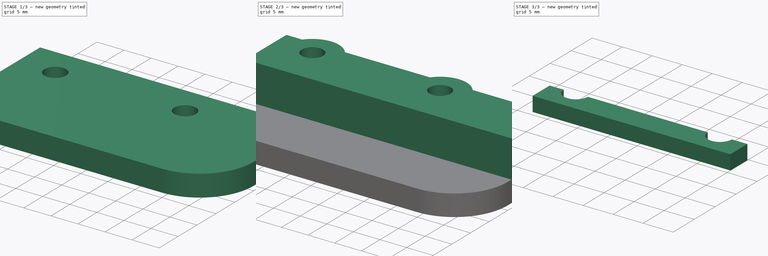
[diagram: build sequence overview — one tinted view per stage of 3, left to right]
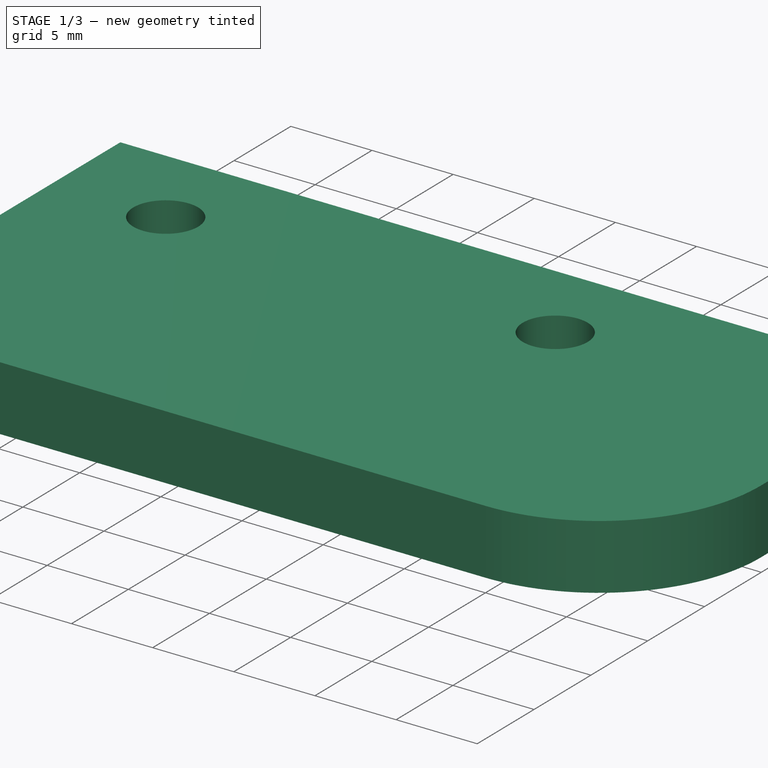
[diagram: stage 1 of 3 — iso view after this stage's code; geometry added in this stage tinted green]
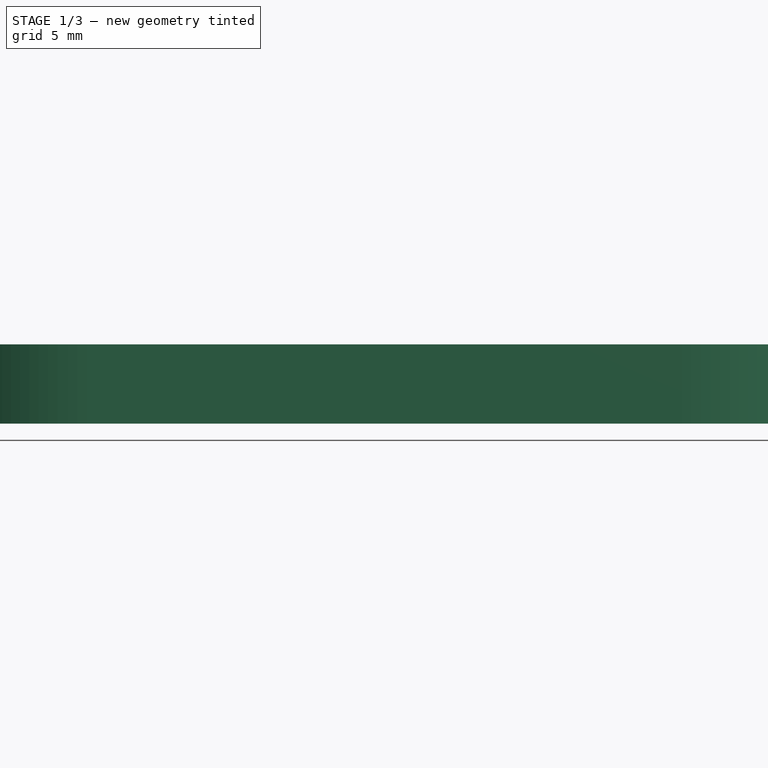
[diagram: stage 1 of 3 — front view after this stage's code; geometry added in this stage tinted green]
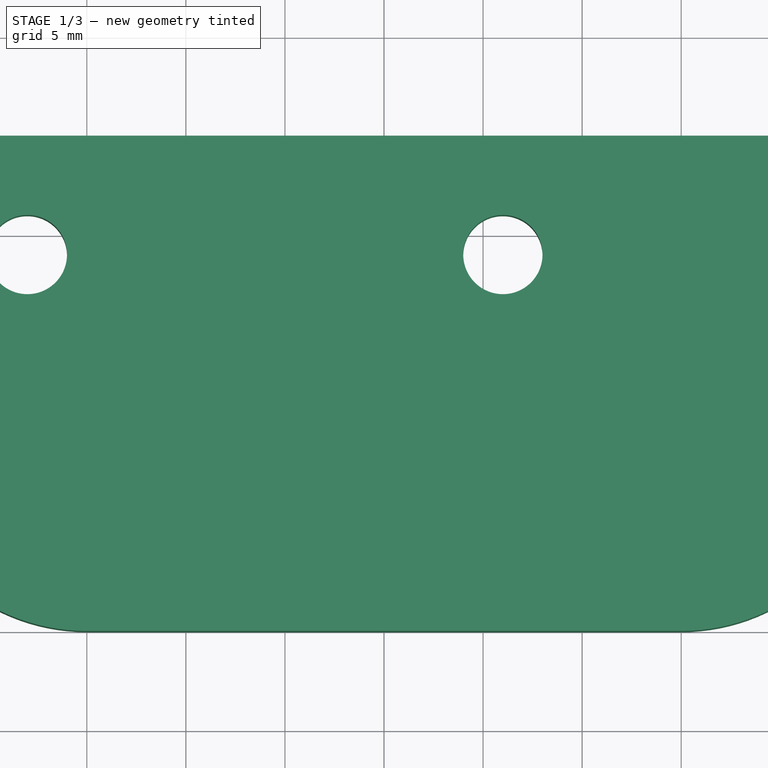
[diagram: stage 1 of 3 — top view after this stage's code; geometry added in this stage tinted green]
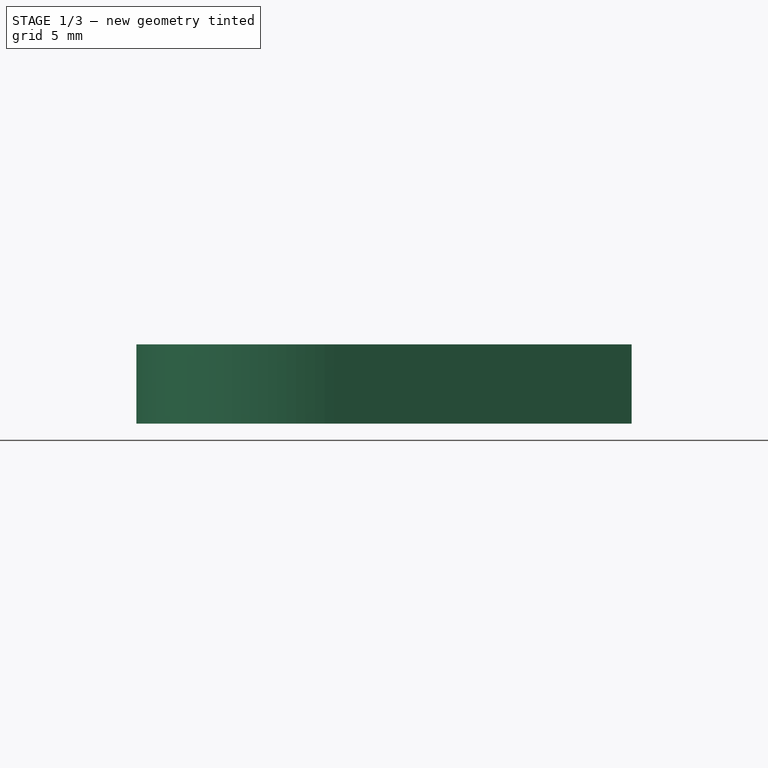
[diagram: stage 1 of 3 — right view after this stage's code; geometry added in this stage tinted green]
FCSTD DOCUMENT  (FreeCAD 0.21R33771 (Git))
Label: ShedDoorConnect
License: All rights reserved
LicenseURL: http://en.wikipedia.org/wiki/All_rights_reserved
objects: Sketcher::SketchObject×5, PartDesign::Pad×3, PartDesign::Pocket×2, Spreadsheet::Sheet×1, PartDesign::Body×1
note: 16 computed .brp shape members not serialized (recipe doc carries the construction recipe); baked Part::Feature solids carry a one-line shape summary decoded from their .brp

FEATURE [Sketcher::SketchObject] Sketch
  FullyConstrained = true
  MapMode = 5
  Support = -> [XY_Plane]
  expr: Constraints[10] = Spreadsheet.bottomRoundR
  expr: Constraints[11] = Spreadsheet.bottomRoundR
  expr: Constraints[12] = Spreadsheet.sideToHoleCenter
  expr: Constraints[13] = Spreadsheet.holeR
  expr: Constraints[14] = Spreadsheet.holeToBottom
  expr: Constraints[15] = Spreadsheet.holeToBottom
  expr: Constraints[16] = Spreadsheet.betweenHoleDist
  expr: Constraints[17] = Spreadsheet.holeR
  expr: Constraints[18] = Spreadsheet.totalWidth
  expr: Constraints[21] = Spreadsheet.bottomRoundR
  expr: Constraints[6] = Spreadsheet.totalBottomHeight
  expr: Constraints[7] = Spreadsheet.bottomRoundR
  sketch-geometry (8):
    g0: LineSegment StartX=10 StartY=0 StartZ=0 EndX=40 EndY=0 EndZ=0
    g1: LineSegment StartX=50 StartY=10 StartZ=0 EndX=50 EndY=22 EndZ=0
    g2: LineSegment StartX=50 StartY=22 StartZ=0 EndX=0 EndY=22 EndZ=0
    g3: LineSegment StartX=0 StartY=22 StartZ=0 EndX=0 EndY=10 EndZ=0
    g4: ArcOfCircle CenterX=10 CenterY=10 CenterZ=0 NormalX=0 NormalY=0 NormalZ=1 AngleXU=0 Radius=10 StartAngle=3.14159 EndAngle=4.71239
    g5: Circle CenterX=7 CenterY=19 CenterZ=0 NormalX=0 NormalY=0 NormalZ=1 AngleXU=0 Radius=2
    g6: Circle CenterX=31 CenterY=19 CenterZ=0 NormalX=0 NormalY=0 NormalZ=1 AngleXU=0 Radius=2
    g7: ArcOfCircle CenterX=40 CenterY=10 CenterZ=0 NormalX=0 NormalY=0 NormalZ=1 AngleXU=0 Radius=10 StartAngle=4.71239 EndAngle=6.28319
  constraints (22):
    c: Coincident(g1,g2)
    c: Coincident(g2,g3)
    c: Horizontal(g0)
    c: Horizontal(g2)
    c: Vertical(g1)
    c: Vertical(g3)
    c: DistanceY(g-1,g3) = 22
    c: Radius(g4) = 10
    c: Tangent(g3,g4) = -1.5708
    c: Tangent(g0,g4) = -1.5708
    c: DistanceY(g-1,g4) = 10
    c: DistanceX(g-1,g4) = 10
    c: DistanceX(g-1,g5) = 7
    c: Radius(g5) = 2
    c: DistanceY(g-1,g5) = 19
    c: DistanceY(g-1,g6) = 19
    c: DistanceX(g5,g6) = 24
    c: Radius(g6) = 2
    c: DistanceX(g2,g2) = 50
    c: Tangent(g1,g7) = -1.5708
    c: Tangent(g0,g7) = -1.5708
    c: Radius(g7) = 10
FEATURE [Spreadsheet::Sheet] Spreadsheet
  cells = A2='holeR; B2(holeR)==4 / 2; A4='totalWidth; B4(totalWidth)=50; A5='centerBlockW; B5(centerBlockW)=11; A6='bottomHeight; B6(bottomHeight)=11; A7='bottomRoundR; B7(bottomRoundR)=10; A8='topHeight; B8(topHeight)=3; A9='sideToHoleCenter; B9(sideToHoleCenter)=7; A11='betweenHoleDist; B11(betweenHoleDist)=24; A13='totalBottomHeight; B13(totalBottomHeight)==centerBlockW + bottomHeight; A15='holeToBottom; B15(holeToBottom)=19; A17='outerPad; B17(outerPad)=4; A19='holeGuardR; B19(holeGuardR)=5
FEATURE [PartDesign::Pad] Pad
  Direction = (0,0,1)
  Length = 4
  Length2 = 10
  Profile = -> Sketch
  ReferenceAxis = -> Sketch [N_Axis]
  Type = 0
  expr: Length = Spreadsheet.outerPad
FEATURE [Sketcher::SketchObject] Sketch001
  FullyConstrained = true
  MapMode = 5
  Support = -> [XY_Plane]
  expr: Constraints[10] = Spreadsheet.topHeight
  expr: Constraints[11] = Spreadsheet.totalBottomHeight
  expr: Constraints[9] = Spreadsheet.totalWidth
  sketch-geometry (4):
    g0: LineSegment StartX=0 StartY=22 StartZ=0 EndX=50 EndY=22 EndZ=0
    g1: LineSegment StartX=50 StartY=22 StartZ=0 EndX=50 EndY=25 EndZ=0
    g2: LineSegment StartX=50 StartY=25 StartZ=0 EndX=0 EndY=25 EndZ=0
    g3: LineSegment StartX=0 StartY=25 StartZ=0 EndX=0 EndY=22 EndZ=0
  constraints (12):
    c: Coincident(g0,g1)
    c: Coincident(g1,g2)
    c: Coincident(g2,g3)
    c: Coincident(g3,g0)
    c: Horizontal(g0)
    c: Horizontal(g2)
    c: Vertical(g1)
    c: Vertical(g3)
    c: PointOnObject(g0,g-2)
    c: DistanceX(g2,g2) = 50
    c: DistanceY(g3,g3) = 3
    c: DistanceY(g-1,g0) = 22
FEATURE [PartDesign::Pad] Pad001
  BaseFeature = -> Pad
  Direction = (0,0,1)
  Length = 4
  Length2 = 10
  Profile = -> Sketch001
  ReferenceAxis = -> Sketch001 [N_Axis]
  Type = 0
  expr: Length = Spreadsheet.outerPad
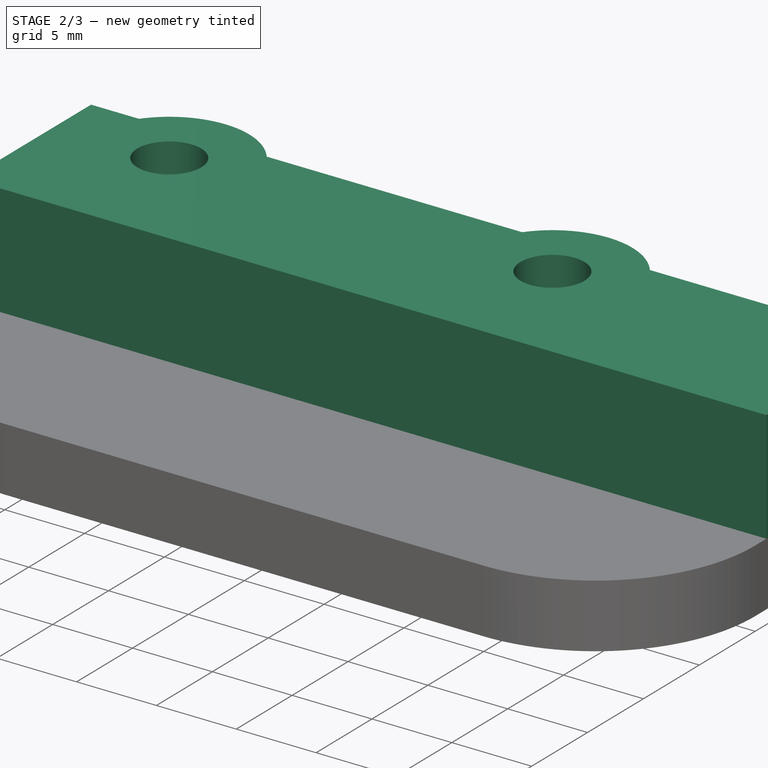
[diagram: stage 2 of 3 — iso view after this stage's code; geometry added in this stage tinted green]
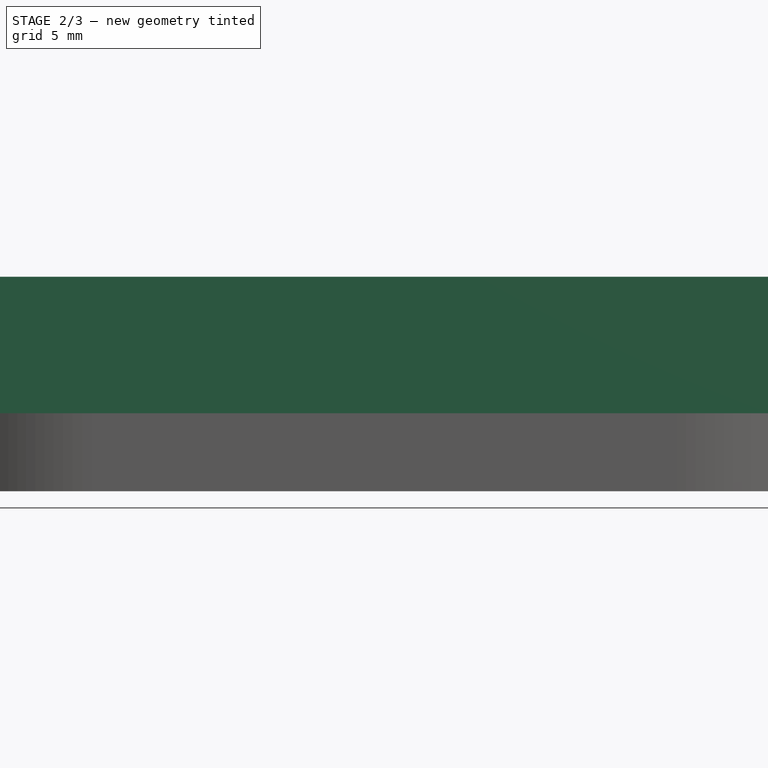
[diagram: stage 2 of 3 — front view after this stage's code; geometry added in this stage tinted green]
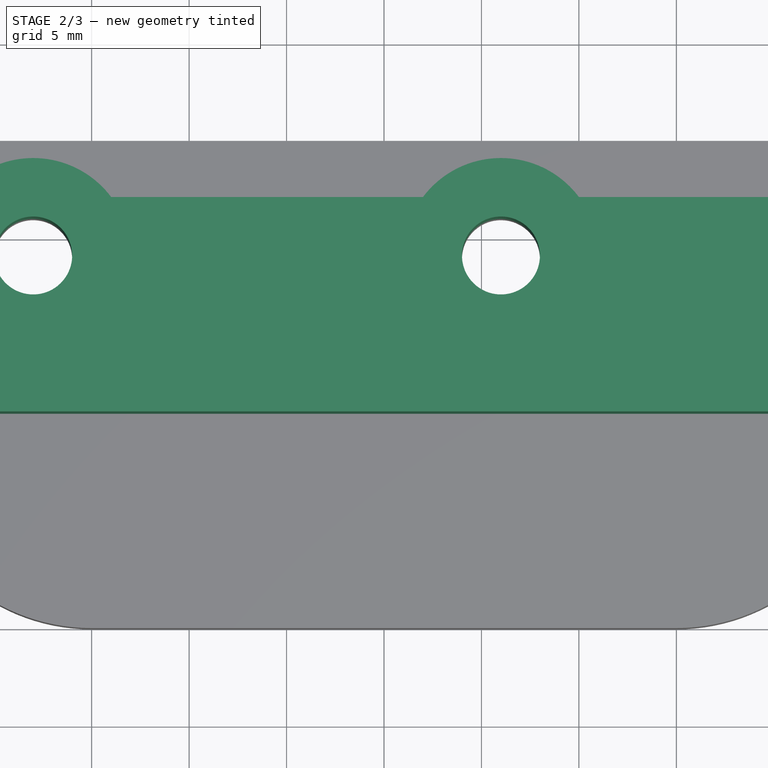
[diagram: stage 2 of 3 — top view after this stage's code; geometry added in this stage tinted green]
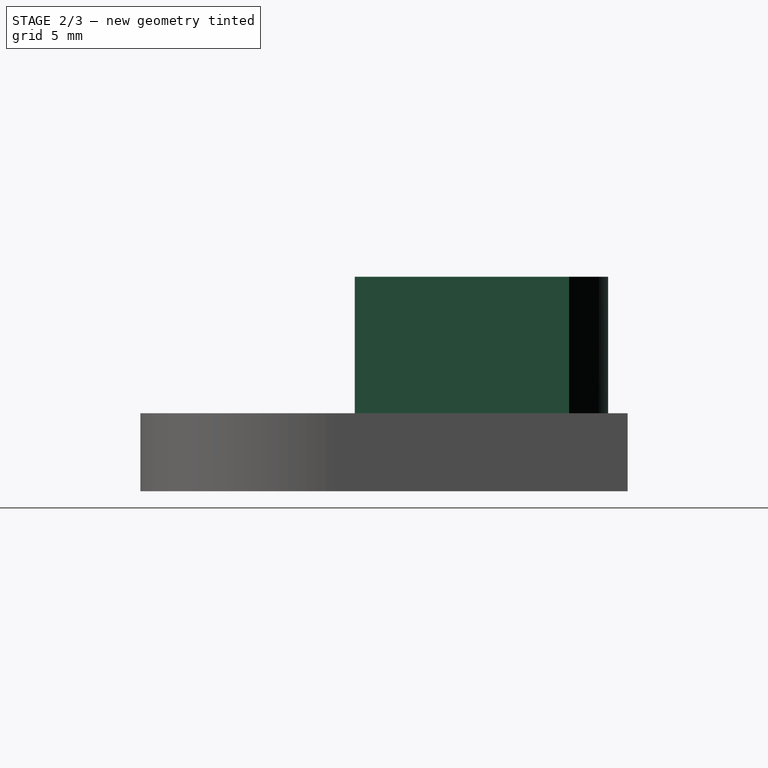
[diagram: stage 2 of 3 — right view after this stage's code; geometry added in this stage tinted green]
FEATURE [Sketcher::SketchObject] Sketch002
  FullyConstrained = true
  MapMode = 5
  Support = -> [XY_Plane]
  expr: Constraints[10] = Spreadsheet.betweenHoleDist
  expr: Constraints[11] = Spreadsheet.holeR
  expr: Constraints[12] = Spreadsheet.totalWidth
  expr: Constraints[17] = Spreadsheet.centerBlockW
  expr: Constraints[19] = Spreadsheet.holeGuardR
  expr: Constraints[28] = Spreadsheet.holeGuardR
  expr: Constraints[29] = Spreadsheet.totalBottomHeight
  expr: Constraints[5] = Spreadsheet.totalBottomHeight
  expr: Constraints[6] = Spreadsheet.sideToHoleCenter
  expr: Constraints[7] = Spreadsheet.holeR
  expr: Constraints[8] = Spreadsheet.holeToBottom
  expr: Constraints[9] = Spreadsheet.holeToBottom
  sketch-geometry (10):
    g0: LineSegment StartX=50 StartY=11 StartZ=0 EndX=50 EndY=22 EndZ=0
    g1: LineSegment StartX=50 StartY=22 StartZ=0 EndX=35 EndY=22 EndZ=0
    g2: LineSegment StartX=0 StartY=22 StartZ=0 EndX=0 EndY=11 EndZ=0
    g3: Circle CenterX=7 CenterY=19 CenterZ=0 NormalX=0 NormalY=0 NormalZ=1 AngleXU=0 Radius=2
    g4: Circle CenterX=31 CenterY=19 CenterZ=0 NormalX=0 NormalY=0 NormalZ=1 AngleXU=0 Radius=2
    g5: LineSegment StartX=0 StartY=11 StartZ=0 EndX=50 EndY=11 EndZ=0
    g6: ArcOfCircle CenterX=7 CenterY=19 CenterZ=0 NormalX=0 NormalY=0 NormalZ=1 AngleXU=0 Radius=5 StartAngle=0.643501 EndAngle=2.49809
    g7: LineSegment StartX=3 StartY=22 StartZ=0 EndX=0 EndY=22 EndZ=0
    g8: ArcOfCircle CenterX=31 CenterY=19 CenterZ=0 NormalX=0 NormalY=0 NormalZ=1 AngleXU=0 Radius=5 StartAngle=0.643501 EndAngle=2.49809
    g9: LineSegment StartX=27 StartY=22 StartZ=0 EndX=11 EndY=22 EndZ=0
  constraints (30):
    c: Coincident(g0,g1)
    c: Coincident(g7,g2)
    c: Horizontal(g1)
    c: Vertical(g0)
    c: Vertical(g2)
    c: DistanceY(g-1,g2) = 22
    c: DistanceX(g-1,g3) = 7
    c: Radius(g3) = 2
    c: DistanceY(g-1,g3) = 19
    c: DistanceY(g-1,g4) = 19
    c: DistanceX(g3,g4) = 24
    c: Radius(g4) = 2
    c: DistanceX(g7,g1) = 50
    c: Coincident(g5,g2)
    c: Coincident(g5,g0)
    c: Horizontal(g5)
    c: PointOnObject(g7,g-2)
    c: DistanceY(g2,g2) = 11
    c: Coincident(g6,g3)
    c: Radius(g6) = 5
    c: Coincident(g9,g6)
    c: Coincident(g7,g6)
    c: Horizontal(g7)
    c: Equal(g2,g0)
    c: Coincident(g8,g4)
    c: Coincident(g1,g8)
    c: Coincident(g9,g8)
    c: Horizontal(g9)
    c: Radius(g8) = 5
    c: DistanceY(g-1,g6) = 22
FEATURE [PartDesign::Pad] Pad002
  BaseFeature = -> Pad001
  Direction = (0,0,1)
  Length = 11
  Length2 = 10
  Profile = -> Sketch002
  ReferenceAxis = -> Sketch002 [N_Axis]
  Type = 0
  expr: Length = Spreadsheet.centerBlockW
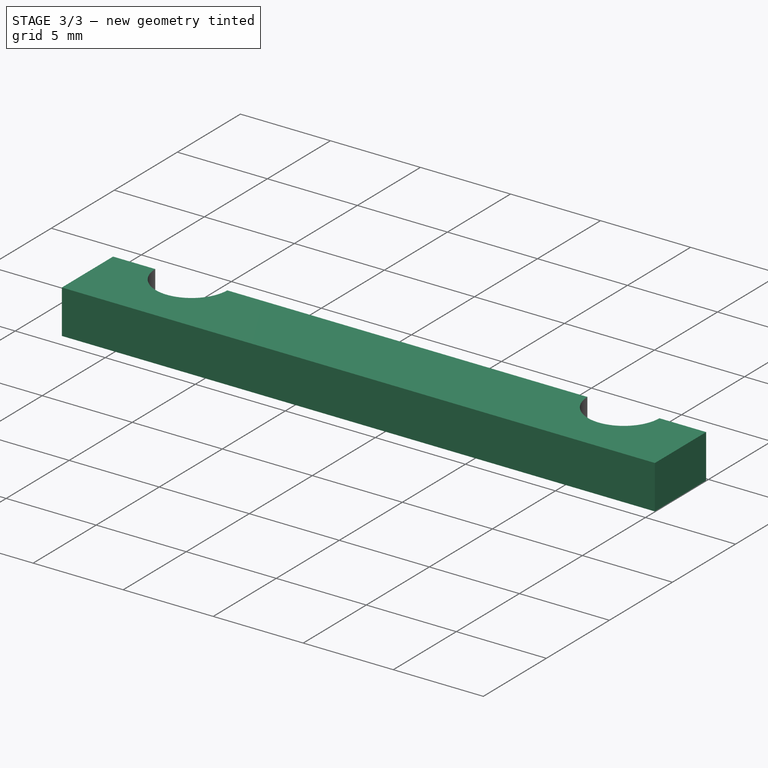
[diagram: stage 3 of 3 — iso view after this stage's code; geometry added in this stage tinted green]
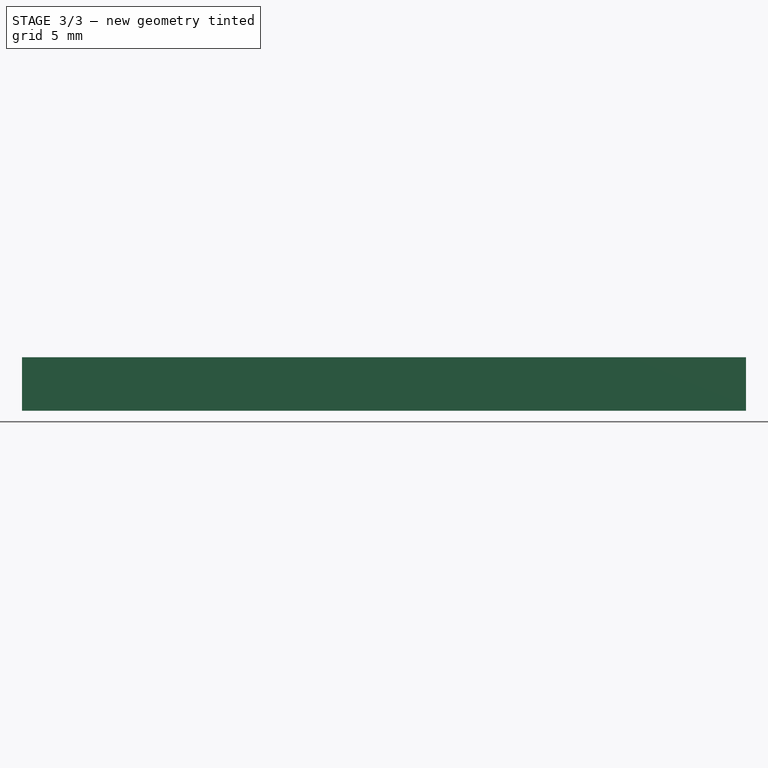
[diagram: stage 3 of 3 — front view after this stage's code; geometry added in this stage tinted green]
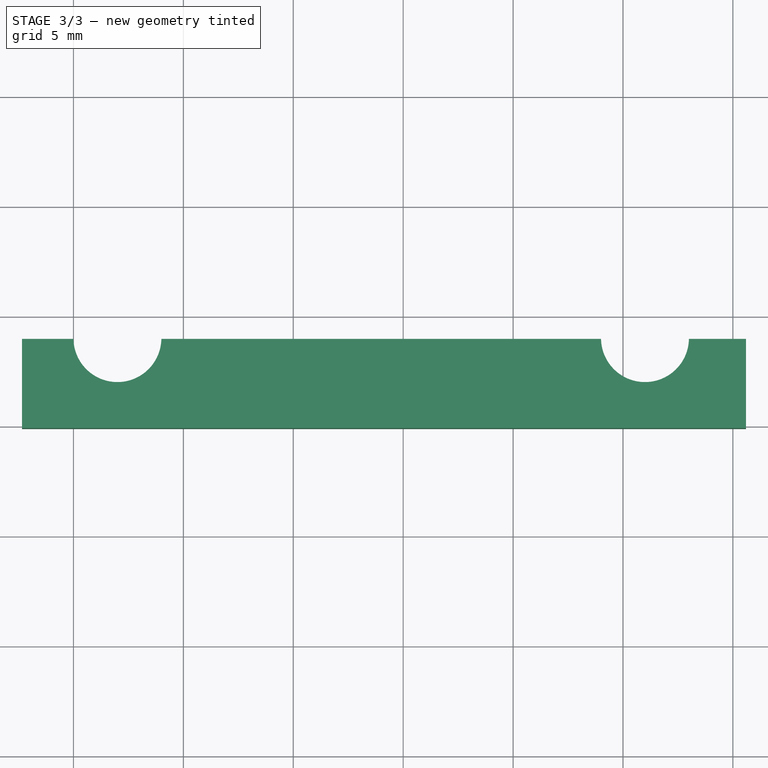
[diagram: stage 3 of 3 — top view after this stage's code; geometry added in this stage tinted green]
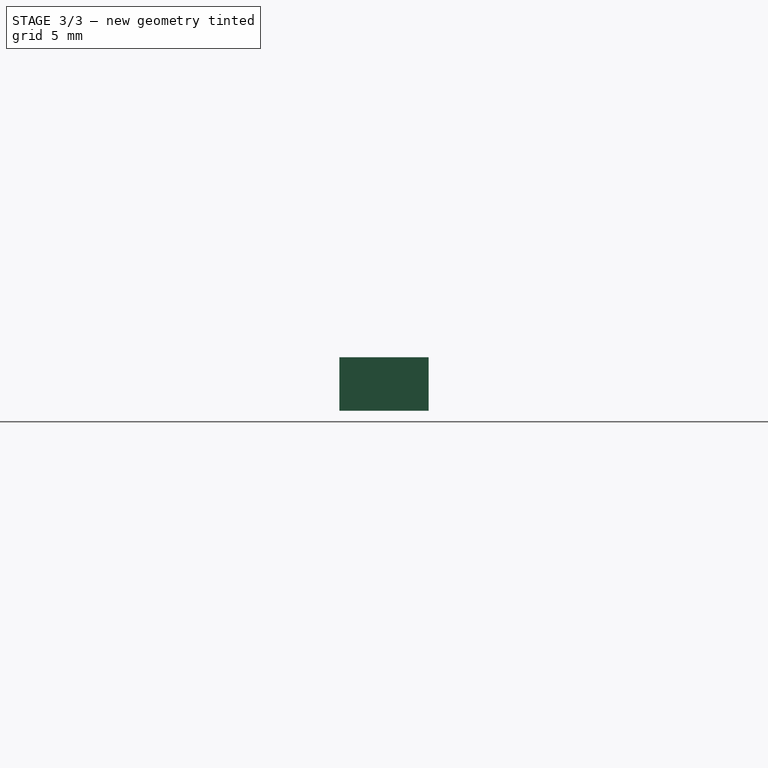
[diagram: stage 3 of 3 — right view after this stage's code; geometry added in this stage tinted green]
FEATURE [Sketcher::SketchObject] Sketch003
  FullyConstrained = false
  MapMode = 5
  Support = -> [XY_Plane]
  sketch-geometry (8):
    g0: LineSegment StartX=-3.17904 StartY=30.6203 StartZ=0 EndX=54.1335 EndY=30.6203 EndZ=0
    g1: LineSegment StartX=54.1335 StartY=30.6203 StartZ=0 EndX=54.1335 EndY=-4.86593 EndZ=0
    g2: LineSegment StartX=54.1335 StartY=-4.86593 StartZ=0 EndX=-3.17904 EndY=-4.86593 EndZ=0
    g3: LineSegment StartX=-3.17904 StartY=-4.86593 StartZ=0 EndX=-3.17904 EndY=30.6203 EndZ=0
    g4: LineSegment StartX=2.66018 StartY=18.9648 StartZ=0 EndX=35.595 EndY=18.9648 EndZ=0
    g5: LineSegment StartX=35.595 StartY=18.9648 StartZ=0 EndX=35.595 EndY=14.902 EndZ=0
    g6: LineSegment StartX=35.595 StartY=14.902 StartZ=0 EndX=2.66018 EndY=14.902 EndZ=0
    g7: LineSegment StartX=2.66018 StartY=14.902 StartZ=0 EndX=2.66018 EndY=18.9648 EndZ=0
  constraints (16):
    c: Coincident(g0,g1)
    c: Coincident(g1,g2)
    c: Coincident(g2,g3)
    c: Coincident(g3,g0)
    c: Horizontal(g0)
    c: Horizontal(g2)
    c: Vertical(g1)
    c: Vertical(g3)
    c: Coincident(g4,g5)
    c: Coincident(g5,g6)
    c: Coincident(g6,g7)
    c: Coincident(g7,g4)
    c: Horizontal(g4)
    c: Horizontal(g6)
    c: Vertical(g5)
    c: Vertical(g7)
FEATURE [PartDesign::Pocket] Pocket
  BaseFeature = -> Pad002
  Direction = (0,0,-1)
  Length = 5
  Length2 = 5
  Profile = -> Sketch003
  ReferenceAxis = -> Sketch003 [N_Axis]
  Reversed = true
  Type = 1
FEATURE [Sketcher::SketchObject] Sketch004
  FullyConstrained = false
  MapMode = 5
  Placement = pos=(0,0,0) rot=(1,0,0;1.5708rad)
  Support = -> [XZ_Plane]
  sketch-geometry (4):
    g0: LineSegment StartX=-6.21185 StartY=13.6414 StartZ=0 EndX=40.9299 EndY=13.6414 EndZ=0
    g1: LineSegment StartX=40.9299 StartY=13.6414 StartZ=0 EndX=40.9299 EndY=2.43126 EndZ=0
    g2: LineSegment StartX=40.9299 StartY=2.43126 StartZ=0 EndX=-6.21185 EndY=2.43126 EndZ=0
    g3: LineSegment StartX=-6.21185 StartY=2.43126 StartZ=0 EndX=-6.21185 EndY=13.6414 EndZ=0
  constraints (8):
    c: Coincident(g0,g1)
    c: Coincident(g1,g2)
    c: Coincident(g2,g3)
    c: Coincident(g3,g0)
    c: Horizontal(g0)
    c: Horizontal(g2)
    c: Vertical(g1)
    c: Vertical(g3)
FEATURE [PartDesign::Pocket] Pocket001
  BaseFeature = -> Pocket
  Direction = (0,1,-2e-16)
  Length = 5
  Length2 = 5
  Profile = -> Sketch004
  ReferenceAxis = -> Sketch004 [N_Axis]
  Type = 1
FEATURE [PartDesign::Body] Body
  Group = -> [Sketch,Pad,Sketch001,Pad001,Sketch002,Pad002,Sketch003,Pocket,Sketch004,Pocket001]
  Origin = -> Origin
  Tip = -> Pocket001
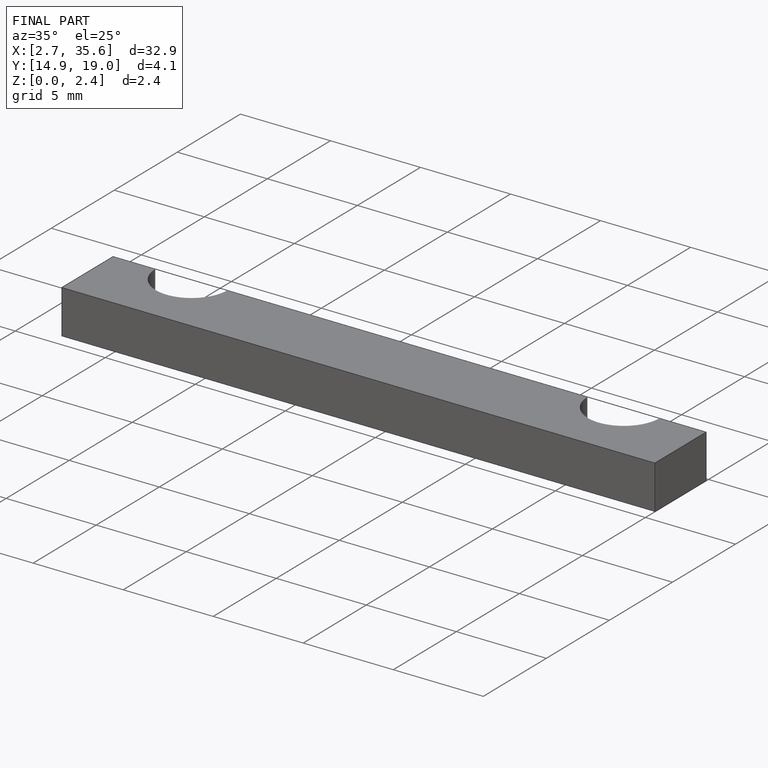
[diagram: finished part — iso view with bounding-box wireframe]
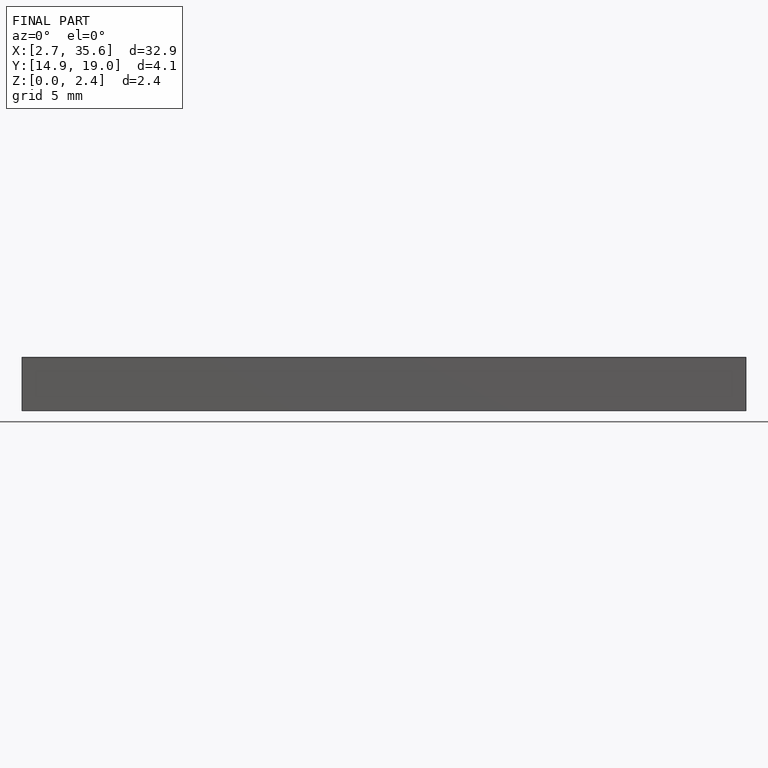
[diagram: finished part — front view with bounding-box wireframe]
